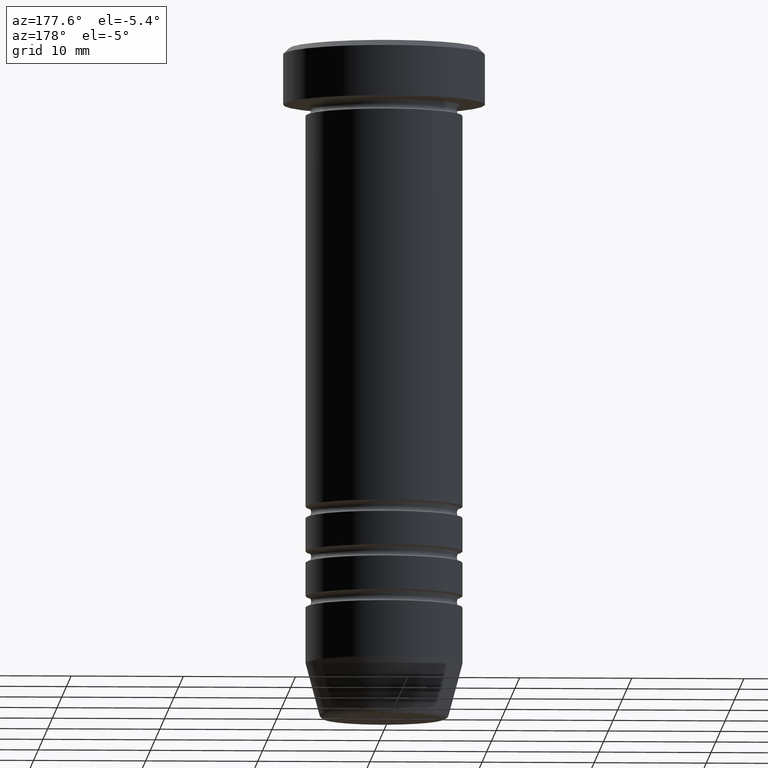
[diagram: clean part render]
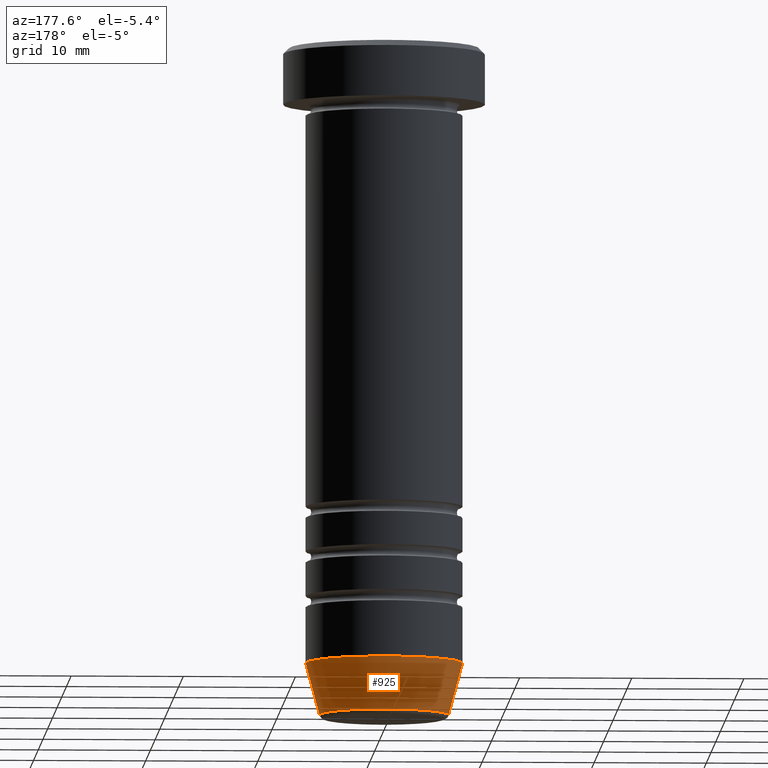
[diagram: same view with one face highlighted and labeled with its STEP entity id]
A machine part, auxiliary view. The second image highlights one B-rep face of the part: STEP entity #925.
In plain terms, the highlighted conical surface has half-angle 15 deg.
Its self-contained STEP definition (entity closure, byte-faithful):
#10 = EDGE_CURVE ( 'NONE', #786, #341, #89, .T. ) ;
#37 = AXIS2_PLACEMENT_3D ( 'NONE', #332, #821, #572 ) ;
#68 = AXIS2_PLACEMENT_3D ( 'NONE', #97, #751, #1042 ) ;
#86 = ORIENTED_EDGE ( 'NONE', *, *, #765, .F. ) ;
#89 = CIRCLE ( 'NONE', #824, 7.000000000000000000 ) ;
#94 = VECTOR ( 'NONE', #777, 1000.000000000000114 ) ;
#97 = CARTESIAN_POINT ( 'NONE',  ( 0.000000000000000000, 0.000000000000000000, -59.62940952255126348 ) ) ;
#135 = CARTESIAN_POINT ( 'NONE',  ( 5.660254037844382857, 0.000000000000000000, -60.00000000000000000 ) ) ;
#184 = VECTOR ( 'NONE', #735, 1000.000000000000114 ) ;
#332 = CARTESIAN_POINT ( 'NONE',  ( 0.000000000000000000, 0.000000000000000000, -60.00000000000000000 ) ) ;
#335 = CARTESIAN_POINT ( 'NONE',  ( 5.759553456999435994, 0.000000000000000000, -59.62940952255126348 ) ) ;
#341 = VERTEX_POINT ( 'NONE', #362 ) ;
#362 = CARTESIAN_POINT ( 'NONE',  ( -7.000000000000000000, 8.572527594031473190E-16, -54.99999999999999289 ) ) ;
#379 = VERTEX_POINT ( 'NONE', #335 ) ;
#396 = CARTESIAN_POINT ( 'NONE',  ( -5.660254037844382857, 6.931811989807005336E-16, -60.00000000000000000 ) ) ;
#461 = CARTESIAN_POINT ( 'NONE',  ( 7.000000000000000000, 0.000000000000000000, -54.99999999999999289 ) ) ;
#464 = EDGE_LOOP ( 'NONE', ( #507, #741, #592, #86 ) ) ;
#467 = EDGE_CURVE ( 'NONE', #957, #341, #1047, .T. ) ;
#494 = FACE_OUTER_BOUND ( 'NONE', #464, .T. ) ;
#507 = ORIENTED_EDGE ( 'NONE', *, *, #676, .T. ) ;
#572 = DIRECTION ( 'NONE',  ( 1.000000000000000000, 0.000000000000000000, 0.000000000000000000 ) ) ;
#581 = DIRECTION ( 'NONE',  ( -0.000000000000000000, -0.000000000000000000, 1.000000000000000000 ) ) ;
#592 = ORIENTED_EDGE ( 'NONE', *, *, #10, .F. ) ;
#676 = EDGE_CURVE ( 'NONE', #379, #957, #989, .T. ) ;
#735 = DIRECTION ( 'NONE',  ( -0.2588190451025211836, 3.169619151431770488E-17, 0.9659258262890680902 ) ) ;
#741 = ORIENTED_EDGE ( 'NONE', *, *, #467, .T. ) ;
#751 = DIRECTION ( 'NONE',  ( -0.000000000000000000, -0.000000000000000000, 1.000000000000000000 ) ) ;
#765 = EDGE_CURVE ( 'NONE', #379, #786, #860, .T. ) ;
#777 = DIRECTION ( 'NONE',  ( 0.2588190451025211836, 0.000000000000000000, 0.9659258262890680902 ) ) ;
#786 = VERTEX_POINT ( 'NONE', #461 ) ;
#821 = DIRECTION ( 'NONE',  ( -0.000000000000000000, -0.000000000000000000, 1.000000000000000000 ) ) ;
#824 = AXIS2_PLACEMENT_3D ( 'NONE', #911, #581, #1045 ) ;
#847 = CONICAL_SURFACE ( 'NONE', #37, 5.660254037844382857, 0.2617993877991499074 ) ;
#860 = LINE ( 'NONE', #135, #94 ) ;
#911 = CARTESIAN_POINT ( 'NONE',  ( 0.000000000000000000, 0.000000000000000000, -54.99999999999999289 ) ) ;
#925 = ADVANCED_FACE ( 'NONE', ( #494 ), #847, .T. ) ;
#957 = VERTEX_POINT ( 'NONE', #1052 ) ;
#989 = CIRCLE ( 'NONE', #68, 5.759553456999435994 ) ;
#1042 = DIRECTION ( 'NONE',  ( -1.000000000000000000, 0.000000000000000000, 0.000000000000000000 ) ) ;
#1045 = DIRECTION ( 'NONE',  ( 1.000000000000000000, 0.000000000000000000, 0.000000000000000000 ) ) ;
#1047 = LINE ( 'NONE', #396, #184 ) ;
#1052 = CARTESIAN_POINT ( 'NONE',  ( -5.759553456999435994, 7.812973149831952759E-16, -59.62940952255126348 ) ) ;